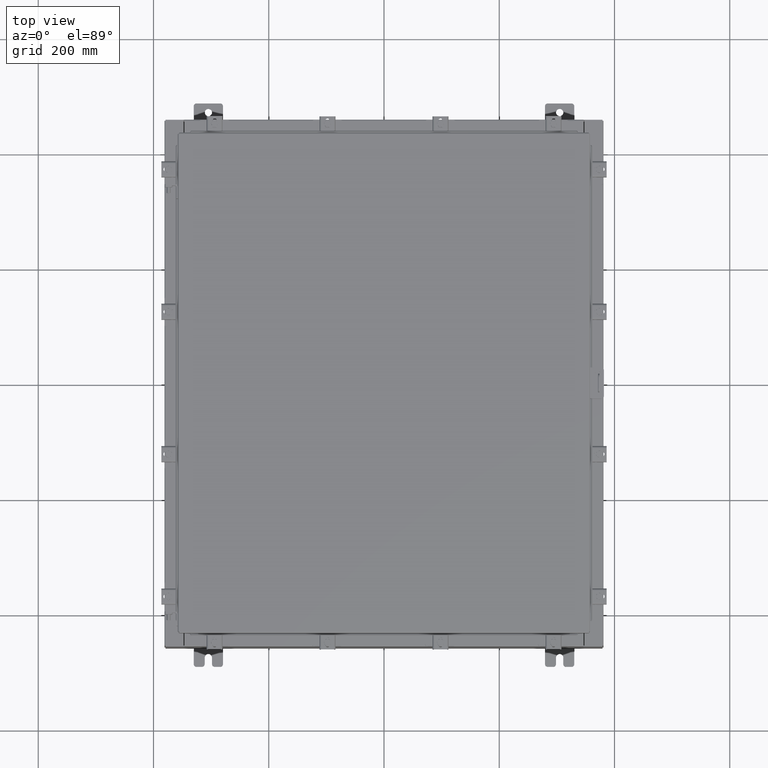
[diagram: clean part render]
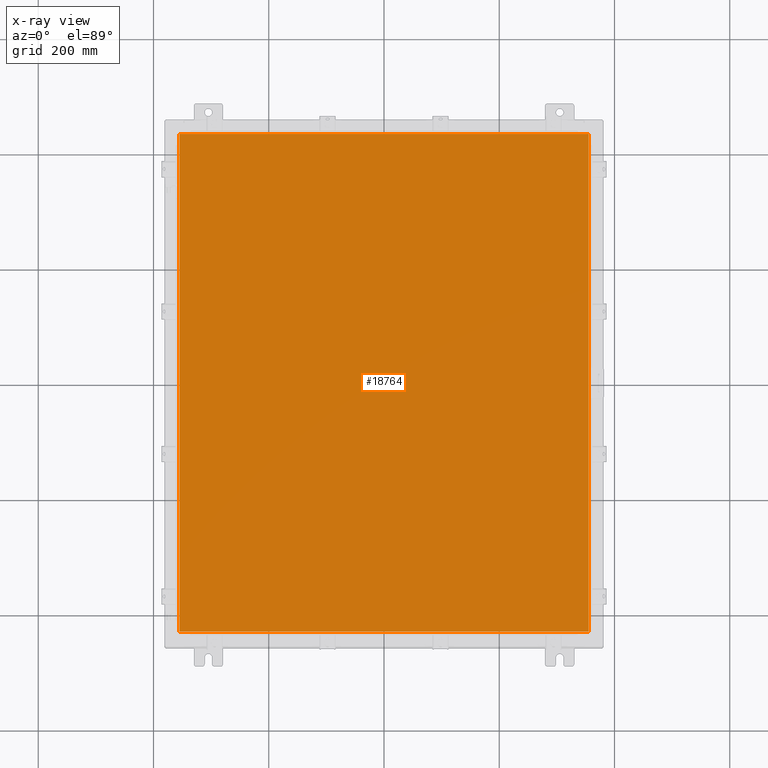
[diagram: x-ray — body ghosted, one internal face saturated and labeled with its STEP entity id]
A machine part, top view, then the same camera in x-ray: the body is ghosted and one INTERNAL B-rep face — a face not visible from any outside direction — is saturated and labeled: STEP entity #18764.
In plain terms, the highlighted planar face has unit normal (0, 0, -1).
Its self-contained STEP definition (entity closure, byte-faithful):
#1041 = CARTESIAN_POINT ( 'NONE',  ( -13.99030000000000000, 17.00629999999999600, -0.07470000000000015500 ) ) ;
#1358 = CARTESIAN_POINT ( 'NONE',  ( 13.99029999999999800, 17.00629999999999600, -0.07470000000000015500 ) ) ;
#2494 = AXIS2_PLACEMENT_3D ( 'NONE', #21441, #19812, #9378 ) ;
#3424 = EDGE_CURVE ( 'NONE', #15789, #11404, #17947, .T. ) ;
#3678 = VERTEX_POINT ( 'NONE', #11307 ) ;
#4032 = VECTOR ( 'NONE', #20162, 39.37007874015748100 ) ;
#4121 = PLANE ( 'NONE',  #2494 ) ;
#4141 = EDGE_CURVE ( 'NONE', #11404, #3678, #8928, .T. ) ;
#4177 = DIRECTION ( 'NONE',  ( 0.0000000000000000000, 1.000000000000000000, 0.0000000000000000000 ) ) ;
#4285 = VECTOR ( 'NONE', #12844, 39.37007874015748100 ) ;
#4402 = CARTESIAN_POINT ( 'NONE',  ( 13.99029999999999600, 17.00629999999999600, -0.07469999999999907300 ) ) ;
#4818 = EDGE_LOOP ( 'NONE', ( #15219, #6916, #22245, #9840 ) ) ;
#5126 = VECTOR ( 'NONE', #4177, 39.37007874015748100 ) ;
#5133 = VECTOR ( 'NONE', #13281, 39.37007874015748100 ) ;
#6916 = ORIENTED_EDGE ( 'NONE', *, *, #12052, .F. ) ;
#8020 = CARTESIAN_POINT ( 'NONE',  ( -13.99029999999999800, -17.00630000000000300, -0.07470000000000015500 ) ) ;
#8928 = LINE ( 'NONE', #12914, #4285 ) ;
#9378 = DIRECTION ( 'NONE',  ( -1.000000000000000000, 0.0000000000000000000, -0.0000000000000000000 ) ) ;
#9840 = ORIENTED_EDGE ( 'NONE', *, *, #3424, .F. ) ;
#11307 = CARTESIAN_POINT ( 'NONE',  ( -13.99030000000000000, -17.00630000000000300, -0.07470000000000015500 ) ) ;
#11404 = VERTEX_POINT ( 'NONE', #1041 ) ;
#11634 = VERTEX_POINT ( 'NONE', #16817 ) ;
#12052 = EDGE_CURVE ( 'NONE', #3678, #11634, #21970, .T. ) ;
#12791 = FACE_OUTER_BOUND ( 'NONE', #4818, .T. ) ;
#12844 = DIRECTION ( 'NONE',  ( 0.0000000000000000000, -1.000000000000000000, 0.0000000000000000000 ) ) ;
#12914 = CARTESIAN_POINT ( 'NONE',  ( -13.99030000000000000, 17.00630000000000000, -0.07470000000000015500 ) ) ;
#13281 = DIRECTION ( 'NONE',  ( -1.000000000000000000, -0.0000000000000000000, -0.0000000000000000000 ) ) ;
#13355 = LINE ( 'NONE', #14629, #5126 ) ;
#14629 = CARTESIAN_POINT ( 'NONE',  ( 13.99029999999999800, -17.00630000000000700, -0.07470000000000015500 ) ) ;
#15219 = ORIENTED_EDGE ( 'NONE', *, *, #19498, .F. ) ;
#15789 = VERTEX_POINT ( 'NONE', #1358 ) ;
#16817 = CARTESIAN_POINT ( 'NONE',  ( 13.99029999999999800, -17.00630000000000300, -0.07470000000000015500 ) ) ;
#17947 = LINE ( 'NONE', #4402, #5133 ) ;
#18764 = ADVANCED_FACE ( 'NONE', ( #12791 ), #4121, .T. ) ;
#19498 = EDGE_CURVE ( 'NONE', #11634, #15789, #13355, .T. ) ;
#19812 = DIRECTION ( 'NONE',  ( 0.0000000000000000000, 0.0000000000000000000, -1.000000000000000000 ) ) ;
#20162 = DIRECTION ( 'NONE',  ( 1.000000000000000000, -0.0000000000000000000, -0.0000000000000000000 ) ) ;
#21441 = CARTESIAN_POINT ( 'NONE',  ( 0.0000000000000000000, 0.0000000000000000000, -0.07470000000000015500 ) ) ;
#21970 = LINE ( 'NONE', #8020, #4032 ) ;
#22245 = ORIENTED_EDGE ( 'NONE', *, *, #4141, .F. ) ;